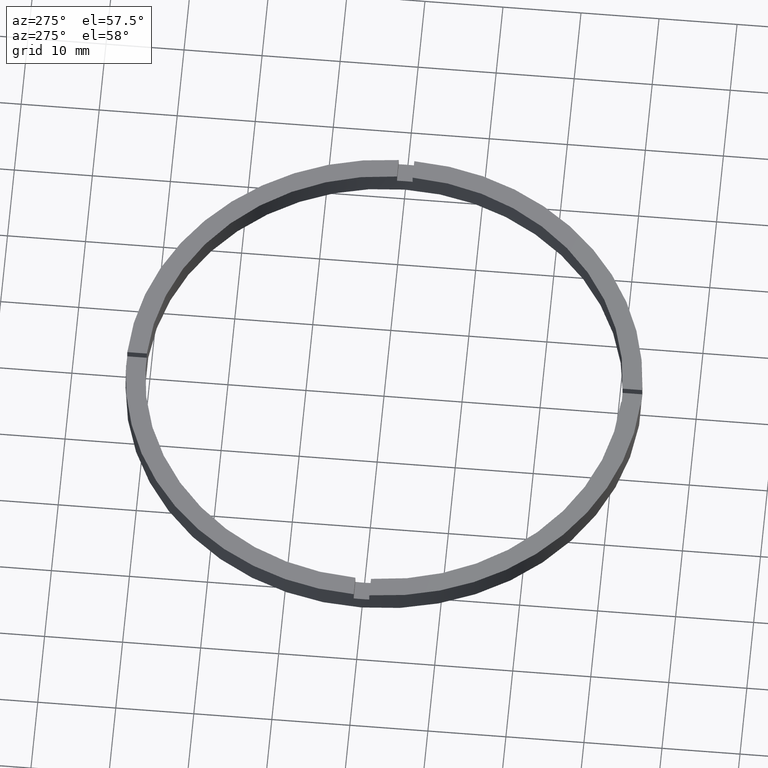
[diagram: clean part render]
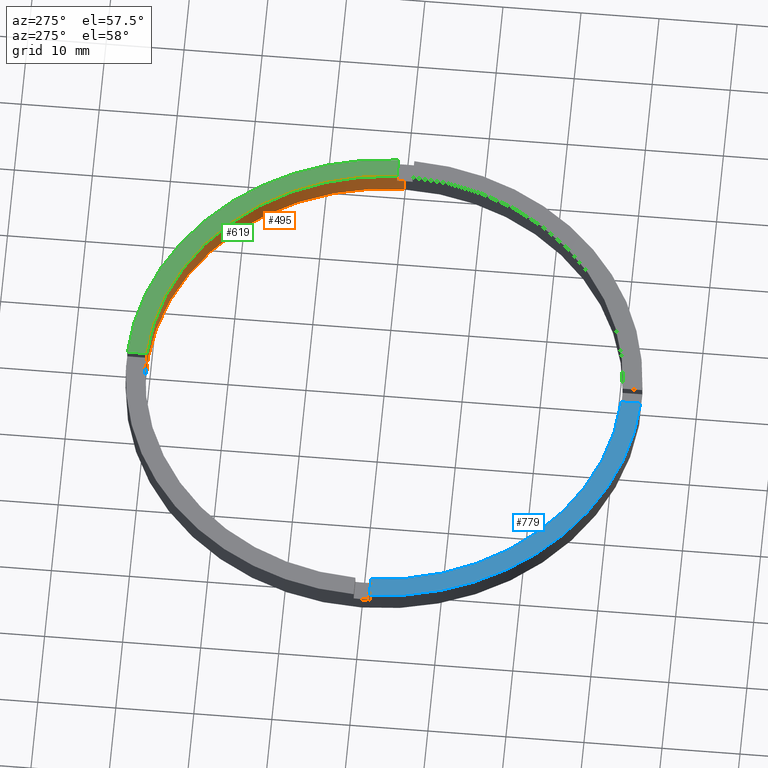
[diagram: same view with three faces highlighted in distinct colors, each labeled with its STEP entity id]
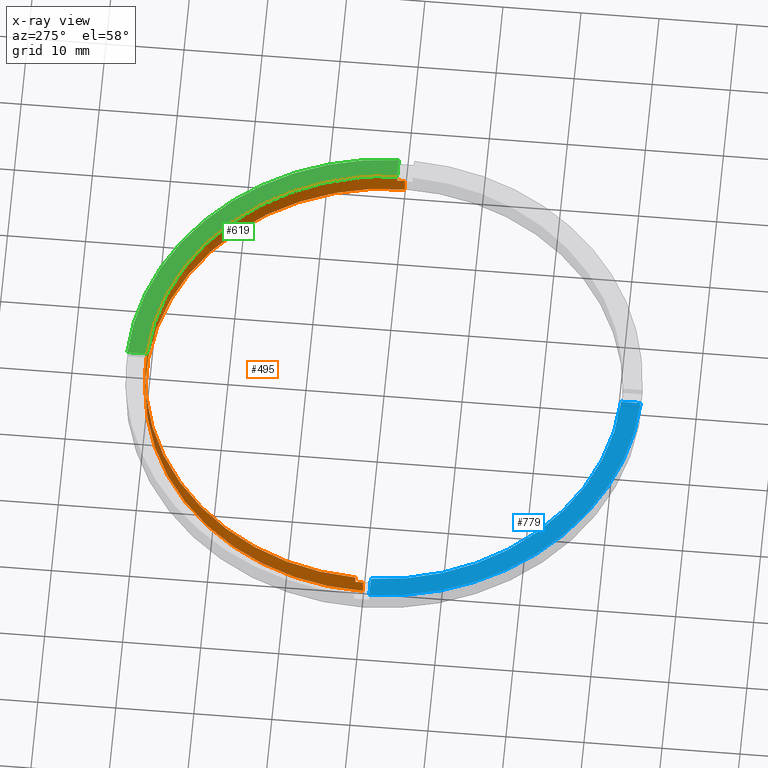
[diagram: x-ray of the same camera — body ghosted, the three highlighted faces saturated]
A machine part, auxiliary view with three faces highlighted in distinct colors.
The next image is the same camera in x-ray (body ghosted, the three faces saturated) — at least one of them is partly hidden behind the body in this view.
Their STEP definitions:

[orange] entity #495 — the highlighted cylindrical surface (partial cylindrical patch) has radius 30.5 mm, axis along (-0, -0, -1).
#2 = AXIS2_PLACEMENT_3D ( 'NONE', #658, #128, #507 ) ;
#12 = ORIENTED_EDGE ( 'NONE', *, *, #735, .F. ) ;
#20 = VECTOR ( 'NONE', #579, 1000.000000000000000 ) ;
#21 = CARTESIAN_POINT ( 'NONE',  ( -1.000000000000024647, 30.48360214935236101, 2.000000000000000000 ) ) ;
#23 = CARTESIAN_POINT ( 'NONE',  ( 0.9999999999999753530, 30.48360214935236101, 2.000000000000000000 ) ) ;
#32 = LINE ( 'NONE', #316, #20 ) ;
#34 = VECTOR ( 'NONE', #39, 1000.000000000000000 ) ;
#39 = DIRECTION ( 'NONE',  ( -0.000000000000000000, -0.000000000000000000, -1.000000000000000000 ) ) ;
#51 = ORIENTED_EDGE ( 'NONE', *, *, #180, .T. ) ;
#75 = EDGE_CURVE ( 'NONE', #639, #98, #412, .T. ) ;
#76 = LINE ( 'NONE', #211, #603 ) ;
#79 = VECTOR ( 'NONE', #707, 1000.000000000000000 ) ;
#98 = VERTEX_POINT ( 'NONE', #424 ) ;
#102 = CARTESIAN_POINT ( 'NONE',  ( 0.000000000000000000, 0.000000000000000000, 2.000000000000000000 ) ) ;
#115 = VERTEX_POINT ( 'NONE', #535 ) ;
#117 = VERTEX_POINT ( 'NONE', #754 ) ;
#118 = EDGE_CURVE ( 'NONE', #749, #115, #423, .T. ) ;
#119 = CARTESIAN_POINT ( 'NONE',  ( 30.50000000000000000, 3.735172737399427541E-15, 2.000000000000000000 ) ) ;
#128 = DIRECTION ( 'NONE',  ( 0.000000000000000000, -0.000000000000000000, 1.000000000000000000 ) ) ;
#131 = VERTEX_POINT ( 'NONE', #633 ) ;
#132 = VERTEX_POINT ( 'NONE', #21 ) ;
#136 = DIRECTION ( 'NONE',  ( 0.000000000000000000, 0.000000000000000000, 1.000000000000000000 ) ) ;
#152 = AXIS2_PLACEMENT_3D ( 'NONE', #251, #522, #247 ) ;
#178 = ORIENTED_EDGE ( 'NONE', *, *, #442, .F. ) ;
#180 = EDGE_CURVE ( 'NONE', #286, #115, #342, .T. ) ;
#195 = CARTESIAN_POINT ( 'NONE',  ( 0.000000000000000000, 0.000000000000000000, 3.000000000000000000 ) ) ;
#211 = CARTESIAN_POINT ( 'NONE',  ( 30.48360214935236456, 0.9999999999998414602, 3.000000000000000000 ) ) ;
#246 = DIRECTION ( 'NONE',  ( 1.000000000000000000, 0.000000000000000000, 0.000000000000000000 ) ) ;
#247 = DIRECTION ( 'NONE',  ( 1.000000000000000000, 0.000000000000000000, 0.000000000000000000 ) ) ;
#251 = CARTESIAN_POINT ( 'NONE',  ( 0.000000000000000000, 0.000000000000000000, 3.000000000000000000 ) ) ;
#254 = CARTESIAN_POINT ( 'NONE',  ( -30.48360214935236101, 0.9999999999999744649, 3.000000000000000000 ) ) ;
#259 = AXIS2_PLACEMENT_3D ( 'NONE', #781, #636, #630 ) ;
#261 = DIRECTION ( 'NONE',  ( -0.000000000000000000, -0.000000000000000000, -1.000000000000000000 ) ) ;
#265 = CARTESIAN_POINT ( 'NONE',  ( 0.000000000000000000, 0.000000000000000000, 3.000000000000000000 ) ) ;
#266 = CARTESIAN_POINT ( 'NONE',  ( -30.48360214935236101, 0.9999999999999744649, 2.000000000000000000 ) ) ;
#269 = ORIENTED_EDGE ( 'NONE', *, *, #75, .T. ) ;
#271 = CARTESIAN_POINT ( 'NONE',  ( -30.50000000000000000, 0.000000000000000000, 2.000000000000000000 ) ) ;
#275 = ORIENTED_EDGE ( 'NONE', *, *, #434, .F. ) ;
#280 = AXIS2_PLACEMENT_3D ( 'NONE', #195, #536, #246 ) ;
#286 = VERTEX_POINT ( 'NONE', #271 ) ;
#315 = LINE ( 'NONE', #254, #79 ) ;
#316 = CARTESIAN_POINT ( 'NONE',  ( -1.000000000000024647, 30.48360214935236101, 3.000000000000000000 ) ) ;
#319 = CIRCLE ( 'NONE', #280, 30.50000000000000000 ) ;
#321 = CIRCLE ( 'NONE', #259, 30.50000000000000000 ) ;
#324 = DIRECTION ( 'NONE',  ( 0.000000000000000000, 0.000000000000000000, 1.000000000000000000 ) ) ;
#342 = LINE ( 'NONE', #531, #602 ) ;
#357 = DIRECTION ( 'NONE',  ( -0.000000000000000000, -0.000000000000000000, -1.000000000000000000 ) ) ;
#358 = FACE_OUTER_BOUND ( 'NONE', #684, .T. ) ;
#379 = ORIENTED_EDGE ( 'NONE', *, *, #443, .T. ) ;
#407 = ORIENTED_EDGE ( 'NONE', *, *, #422, .T. ) ;
#412 = CIRCLE ( 'NONE', #476, 30.50000000000000000 ) ;
#422 = EDGE_CURVE ( 'NONE', #117, #131, #319, .T. ) ;
#423 = CIRCLE ( 'NONE', #776, 30.50000000000000000 ) ;
#424 = CARTESIAN_POINT ( 'NONE',  ( 30.48360214935236456, 0.9999999999998414602, 2.000000000000000000 ) ) ;
#425 = DIRECTION ( 'NONE',  ( 0.000000000000000000, 0.000000000000000000, 1.000000000000000000 ) ) ;
#432 = DIRECTION ( 'NONE',  ( -1.000000000000000000, 0.000000000000000000, 0.000000000000000000 ) ) ;
#434 = EDGE_CURVE ( 'NONE', #752, #131, #315, .T. ) ;
#439 = CARTESIAN_POINT ( 'NONE',  ( 0.9999999999999753530, 30.48360214935236101, 3.000000000000000000 ) ) ;
#442 = EDGE_CURVE ( 'NONE', #493, #98, #76, .T. ) ;
#443 = EDGE_CURVE ( 'NONE', #493, #659, #576, .T. ) ;
#463 = CARTESIAN_POINT ( 'NONE',  ( 0.000000000000000000, 0.000000000000000000, 0.000000000000000000 ) ) ;
#465 = ORIENTED_EDGE ( 'NONE', *, *, #541, .T. ) ;
#476 = AXIS2_PLACEMENT_3D ( 'NONE', #102, #324, #711 ) ;
#481 = CARTESIAN_POINT ( 'NONE',  ( 0.9999999999999753530, 30.48360214935236101, 3.000000000000000000 ) ) ;
#493 = VERTEX_POINT ( 'NONE', #765 ) ;
#495 = ADVANCED_FACE ( 'NONE', ( #358 ), #592, .F. ) ;
#498 = EDGE_CURVE ( 'NONE', #752, #286, #321, .T. ) ;
#507 = DIRECTION ( 'NONE',  ( 1.000000000000000000, 0.000000000000000000, 0.000000000000000000 ) ) ;
#522 = DIRECTION ( 'NONE',  ( 0.000000000000000000, 0.000000000000000000, 1.000000000000000000 ) ) ;
#531 = CARTESIAN_POINT ( 'NONE',  ( -30.50000000000000000, 0.000000000000000000, 3.000000000000000000 ) ) ;
#533 = ORIENTED_EDGE ( 'NONE', *, *, #498, .T. ) ;
#535 = CARTESIAN_POINT ( 'NONE',  ( -30.50000000000000000, 0.000000000000000000, 0.000000000000000000 ) ) ;
#536 = DIRECTION ( 'NONE',  ( 0.000000000000000000, 0.000000000000000000, 1.000000000000000000 ) ) ;
#540 = LINE ( 'NONE', #439, #559 ) ;
#541 = EDGE_CURVE ( 'NONE', #646, #132, #563, .T. ) ;
#542 = LINE ( 'NONE', #772, #34 ) ;
#559 = VECTOR ( 'NONE', #136, 1000.000000000000000 ) ;
#563 = CIRCLE ( 'NONE', #2, 30.50000000000000000 ) ;
#576 = CIRCLE ( 'NONE', #152, 30.50000000000000000 ) ;
#579 = DIRECTION ( 'NONE',  ( -0.000000000000000000, -0.000000000000000000, -1.000000000000000000 ) ) ;
#592 = CYLINDRICAL_SURFACE ( 'NONE', #717, 30.50000000000000000 ) ;
#600 = CARTESIAN_POINT ( 'NONE',  ( 30.50000000000000000, 3.735172737399427541E-15, 0.000000000000000000 ) ) ;
#601 = ORIENTED_EDGE ( 'NONE', *, *, #725, .F. ) ;
#602 = VECTOR ( 'NONE', #261, 1000.000000000000000 ) ;
#603 = VECTOR ( 'NONE', #668, 1000.000000000000000 ) ;
#630 = DIRECTION ( 'NONE',  ( 1.000000000000000000, 0.000000000000000000, 0.000000000000000000 ) ) ;
#633 = CARTESIAN_POINT ( 'NONE',  ( -30.48360214935236101, 0.9999999999999744649, 3.000000000000000000 ) ) ;
#635 = ORIENTED_EDGE ( 'NONE', *, *, #118, .F. ) ;
#636 = DIRECTION ( 'NONE',  ( 0.000000000000000000, 0.000000000000000000, 1.000000000000000000 ) ) ;
#639 = VERTEX_POINT ( 'NONE', #119 ) ;
#646 = VERTEX_POINT ( 'NONE', #23 ) ;
#658 = CARTESIAN_POINT ( 'NONE',  ( 0.000000000000000000, 0.000000000000000000, 2.000000000000000000 ) ) ;
#659 = VERTEX_POINT ( 'NONE', #481 ) ;
#660 = EDGE_CURVE ( 'NONE', #117, #132, #32, .T. ) ;
#668 = DIRECTION ( 'NONE',  ( -0.000000000000000000, -0.000000000000000000, -1.000000000000000000 ) ) ;
#684 = EDGE_LOOP ( 'NONE', ( #12, #269, #178, #379, #601, #465, #698, #407, #275, #533, #51, #635 ) ) ;
#696 = DIRECTION ( 'NONE',  ( 1.000000000000000000, 0.000000000000000000, 0.000000000000000000 ) ) ;
#698 = ORIENTED_EDGE ( 'NONE', *, *, #660, .F. ) ;
#707 = DIRECTION ( 'NONE',  ( 0.000000000000000000, 0.000000000000000000, 1.000000000000000000 ) ) ;
#711 = DIRECTION ( 'NONE',  ( 1.000000000000000000, 0.000000000000000000, 0.000000000000000000 ) ) ;
#717 = AXIS2_PLACEMENT_3D ( 'NONE', #265, #357, #432 ) ;
#725 = EDGE_CURVE ( 'NONE', #646, #659, #540, .T. ) ;
#735 = EDGE_CURVE ( 'NONE', #639, #749, #542, .T. ) ;
#749 = VERTEX_POINT ( 'NONE', #600 ) ;
#752 = VERTEX_POINT ( 'NONE', #266 ) ;
#754 = CARTESIAN_POINT ( 'NONE',  ( -1.000000000000024647, 30.48360214935236101, 3.000000000000000000 ) ) ;
#765 = CARTESIAN_POINT ( 'NONE',  ( 30.48360214935236456, 0.9999999999998414602, 3.000000000000000000 ) ) ;
#772 = CARTESIAN_POINT ( 'NONE',  ( 30.50000000000000000, 3.735172737399427541E-15, 3.000000000000000000 ) ) ;
#776 = AXIS2_PLACEMENT_3D ( 'NONE', #463, #425, #696 ) ;
#781 = CARTESIAN_POINT ( 'NONE',  ( 0.000000000000000000, 0.000000000000000000, 2.000000000000000000 ) ) ;

[blue] entity #779 — the highlighted planar face has unit normal (0, 0, 1).
#18 = DIRECTION ( 'NONE',  ( 1.301042606982605074E-16, -1.000000000000000000, 0.000000000000000000 ) ) ;
#33 = VERTEX_POINT ( 'NONE', #570 ) ;
#90 = CIRCLE ( 'NONE', #352, 33.00000000000000000 ) ;
#92 = ORIENTED_EDGE ( 'NONE', *, *, #217, .F. ) ;
#142 = DIRECTION ( 'NONE',  ( 1.000000000000000000, 0.000000000000000000, -0.000000000000000000 ) ) ;
#154 = CARTESIAN_POINT ( 'NONE',  ( -1.000000000000160982, -32.98484500494128469, 3.000000000000000000 ) ) ;
#157 = AXIS2_PLACEMENT_3D ( 'NONE', #688, #734, #778 ) ;
#167 = EDGE_CURVE ( 'NONE', #565, #397, #678, .T. ) ;
#168 = CARTESIAN_POINT ( 'NONE',  ( -1.000000000000162315, -23.00000000000018119, 3.000000000000000000 ) ) ;
#172 = DIRECTION ( 'NONE',  ( 1.000000000000000000, 0.000000000000000000, 0.000000000000000000 ) ) ;
#217 = EDGE_CURVE ( 'NONE', #397, #33, #326, .T. ) ;
#229 = DIRECTION ( 'NONE',  ( 1.000000000000000000, 1.951563910473908228E-16, -0.000000000000000000 ) ) ;
#231 = AXIS2_PLACEMENT_3D ( 'NONE', #597, #491, #142 ) ;
#292 = EDGE_CURVE ( 'NONE', #565, #366, #90, .T. ) ;
#326 = CIRCLE ( 'NONE', #157, 30.50000000000000000 ) ;
#352 = AXIS2_PLACEMENT_3D ( 'NONE', #720, #764, #172 ) ;
#366 = VERTEX_POINT ( 'NONE', #154 ) ;
#383 = CARTESIAN_POINT ( 'NONE',  ( -23.00000000000018474, -1.000000000000024203, 3.000000000000000000 ) ) ;
#384 = ORIENTED_EDGE ( 'NONE', *, *, #292, .T. ) ;
#397 = VERTEX_POINT ( 'NONE', #649 ) ;
#472 = EDGE_CURVE ( 'NONE', #33, #366, #609, .T. ) ;
#487 = PLANE ( 'NONE',  #231 ) ;
#491 = DIRECTION ( 'NONE',  ( 0.000000000000000000, 0.000000000000000000, 1.000000000000000000 ) ) ;
#503 = EDGE_LOOP ( 'NONE', ( #637, #92, #663, #384 ) ) ;
#550 = FACE_OUTER_BOUND ( 'NONE', #503, .T. ) ;
#565 = VERTEX_POINT ( 'NONE', #666 ) ;
#570 = CARTESIAN_POINT ( 'NONE',  ( -1.000000000000161426, -30.48360214935235390, 3.000000000000000000 ) ) ;
#578 = VECTOR ( 'NONE', #18, 1000.000000000000000 ) ;
#597 = CARTESIAN_POINT ( 'NONE',  ( 0.000000000000000000, 0.000000000000000000, 3.000000000000000000 ) ) ;
#609 = LINE ( 'NONE', #168, #578 ) ;
#637 = ORIENTED_EDGE ( 'NONE', *, *, #472, .F. ) ;
#649 = CARTESIAN_POINT ( 'NONE',  ( -30.48360214935236101, -1.000000000000025535, 3.000000000000000000 ) ) ;
#663 = ORIENTED_EDGE ( 'NONE', *, *, #167, .F. ) ;
#666 = CARTESIAN_POINT ( 'NONE',  ( -32.98484500494128469, -1.000000000000026201, 3.000000000000000000 ) ) ;
#667 = VECTOR ( 'NONE', #229, 1000.000000000000000 ) ;
#678 = LINE ( 'NONE', #383, #667 ) ;
#688 = CARTESIAN_POINT ( 'NONE',  ( 0.000000000000000000, 0.000000000000000000, 3.000000000000000000 ) ) ;
#720 = CARTESIAN_POINT ( 'NONE',  ( 0.000000000000000000, 0.000000000000000000, 3.000000000000000000 ) ) ;
#734 = DIRECTION ( 'NONE',  ( 0.000000000000000000, 0.000000000000000000, 1.000000000000000000 ) ) ;
#764 = DIRECTION ( 'NONE',  ( 0.000000000000000000, 0.000000000000000000, 1.000000000000000000 ) ) ;
#778 = DIRECTION ( 'NONE',  ( 1.000000000000000000, 0.000000000000000000, 0.000000000000000000 ) ) ;
#779 = ADVANCED_FACE ( 'NONE', ( #550 ), #487, .T. ) ;

[green] entity #619 — the highlighted planar face has unit normal (0, 0, 1).
#5 = EDGE_CURVE ( 'NONE', #659, #632, #130, .T. ) ;
#42 = EDGE_CURVE ( 'NONE', #624, #493, #669, .T. ) ;
#53 = ORIENTED_EDGE ( 'NONE', *, *, #443, .F. ) ;
#130 = LINE ( 'NONE', #199, #146 ) ;
#146 = VECTOR ( 'NONE', #398, 1000.000000000000000 ) ;
#152 = AXIS2_PLACEMENT_3D ( 'NONE', #251, #522, #247 ) ;
#192 = ORIENTED_EDGE ( 'NONE', *, *, #738, .T. ) ;
#199 = CARTESIAN_POINT ( 'NONE',  ( 0.9999999999999753530, 23.00000000000000000, 3.000000000000000000 ) ) ;
#227 = CARTESIAN_POINT ( 'NONE',  ( 0.9999999999999753530, 32.98484500494129179, 3.000000000000000000 ) ) ;
#247 = DIRECTION ( 'NONE',  ( 1.000000000000000000, 0.000000000000000000, 0.000000000000000000 ) ) ;
#249 = DIRECTION ( 'NONE',  ( 0.000000000000000000, 0.000000000000000000, 1.000000000000000000 ) ) ;
#251 = CARTESIAN_POINT ( 'NONE',  ( 0.000000000000000000, 0.000000000000000000, 3.000000000000000000 ) ) ;
#264 = CARTESIAN_POINT ( 'NONE',  ( 0.000000000000000000, 0.000000000000000000, 3.000000000000000000 ) ) ;
#270 = DIRECTION ( 'NONE',  ( 0.000000000000000000, 0.000000000000000000, 1.000000000000000000 ) ) ;
#273 = AXIS2_PLACEMENT_3D ( 'NONE', #488, #270, #372 ) ;
#300 = FACE_OUTER_BOUND ( 'NONE', #747, .T. ) ;
#303 = CIRCLE ( 'NONE', #273, 33.00000000000000000 ) ;
#372 = DIRECTION ( 'NONE',  ( 1.000000000000000000, 0.000000000000000000, 0.000000000000000000 ) ) ;
#377 = ORIENTED_EDGE ( 'NONE', *, *, #42, .F. ) ;
#398 = DIRECTION ( 'NONE',  ( 0.000000000000000000, 1.000000000000000000, 0.000000000000000000 ) ) ;
#443 = EDGE_CURVE ( 'NONE', #493, #659, #576, .T. ) ;
#474 = CARTESIAN_POINT ( 'NONE',  ( 32.98484500494129179, 0.9999999999998416822, 3.000000000000000000 ) ) ;
#481 = CARTESIAN_POINT ( 'NONE',  ( 0.9999999999999753530, 30.48360214935236101, 3.000000000000000000 ) ) ;
#488 = CARTESIAN_POINT ( 'NONE',  ( 0.000000000000000000, 0.000000000000000000, 3.000000000000000000 ) ) ;
#489 = ORIENTED_EDGE ( 'NONE', *, *, #5, .F. ) ;
#493 = VERTEX_POINT ( 'NONE', #765 ) ;
#508 = CARTESIAN_POINT ( 'NONE',  ( 22.99999999999999645, 0.9999999999998411271, 3.000000000000000000 ) ) ;
#522 = DIRECTION ( 'NONE',  ( 0.000000000000000000, 0.000000000000000000, 1.000000000000000000 ) ) ;
#567 = PLANE ( 'NONE',  #770 ) ;
#576 = CIRCLE ( 'NONE', #152, 30.50000000000000000 ) ;
#619 = ADVANCED_FACE ( 'NONE', ( #300 ), #567, .T. ) ;
#624 = VERTEX_POINT ( 'NONE', #474 ) ;
#632 = VERTEX_POINT ( 'NONE', #227 ) ;
#659 = VERTEX_POINT ( 'NONE', #481 ) ;
#669 = LINE ( 'NONE', #508, #673 ) ;
#673 = VECTOR ( 'NONE', #748, 1000.000000000000000 ) ;
#710 = DIRECTION ( 'NONE',  ( 1.000000000000000000, 0.000000000000000000, -0.000000000000000000 ) ) ;
#738 = EDGE_CURVE ( 'NONE', #624, #632, #303, .T. ) ;
#747 = EDGE_LOOP ( 'NONE', ( #489, #53, #377, #192 ) ) ;
#748 = DIRECTION ( 'NONE',  ( -1.000000000000000000, -6.505213034913022906E-17, -0.000000000000000000 ) ) ;
#765 = CARTESIAN_POINT ( 'NONE',  ( 30.48360214935236456, 0.9999999999998414602, 3.000000000000000000 ) ) ;
#770 = AXIS2_PLACEMENT_3D ( 'NONE', #264, #249, #710 ) ;